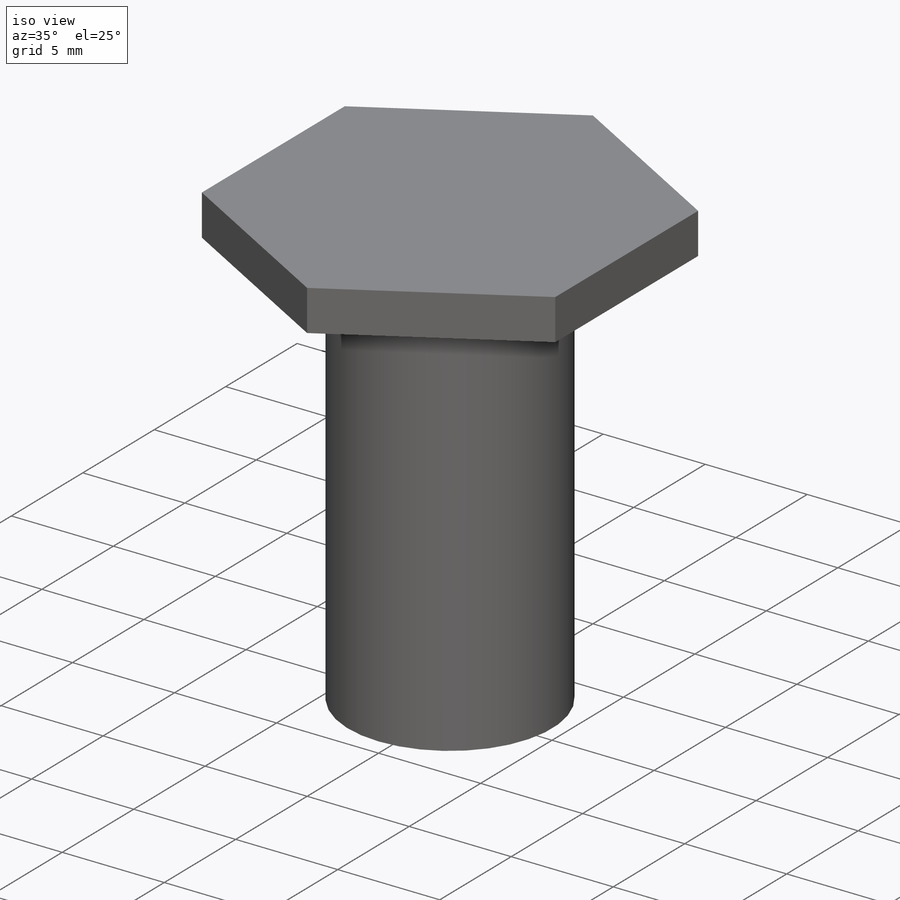
[diagram: iso view]
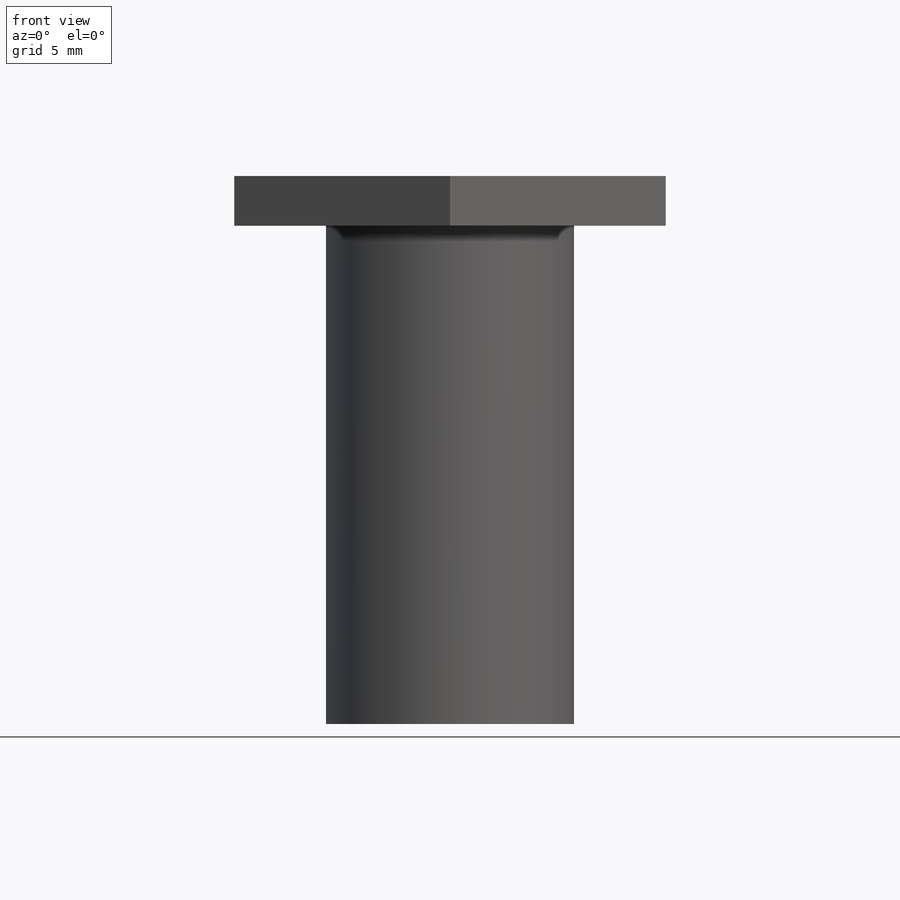
[diagram: front view]
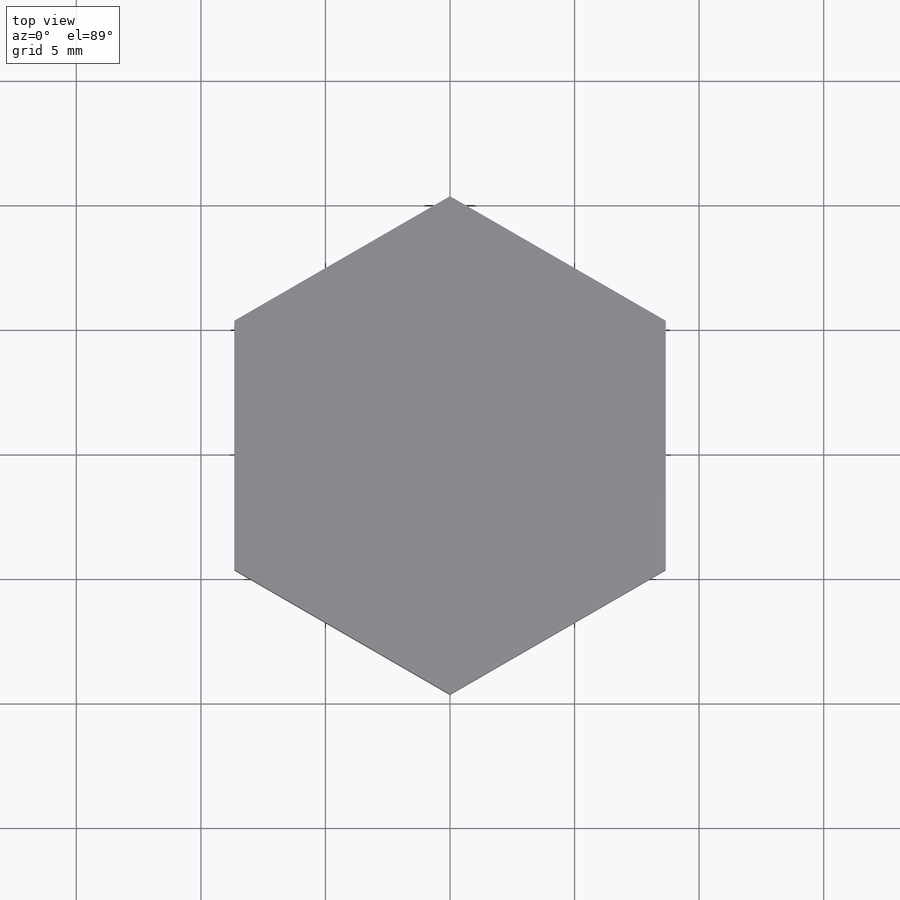
[diagram: top view]
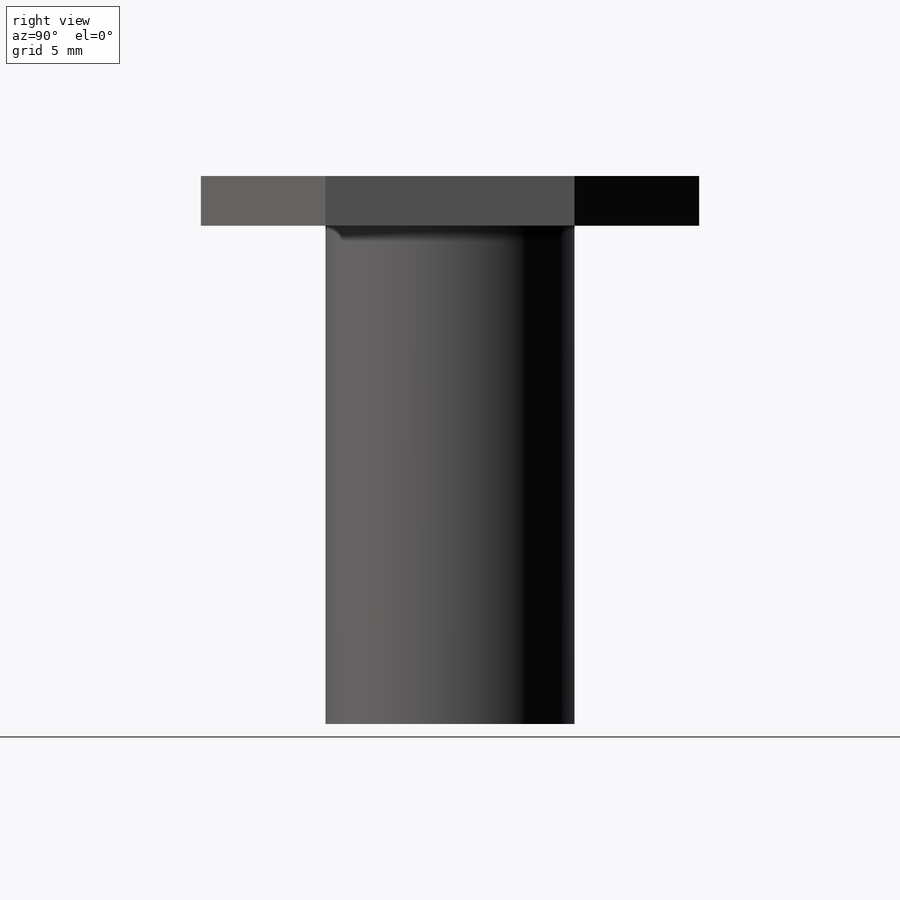
[diagram: right view]
SOLIDWORKS PART (.sldprt)
format: sldprt  version: not decoded by parser v0  size: 118,272 bytes
history: native  units: mm
features: sketch x3, extrude x2, plane x2, material x1, cut_extrude x1 (+12 scaffold rows collapsed)
feature tree (21):
  scaffold x12  (default folders/planes/origin — collapsed)
  material  "Material <not specified>"
  sketch  "Sketch1"  dims[D1=~30.944727mm]
  extrude  "Boss-Extrude1"  Depth=20mm
  plane  "Plane1"
  sketch  "Sketch2"  dims[D1=~8.641581mm]
  extrude  "Boss-Extrude2"  Depth=2mm
  plane  "Plane2"
  sketch  "Sketch3"  dims[D1=6.0]
  cut_extrude  "Cut-Extrude1"  Depth=2mm
decode coverage: 6 of 6 modeling features carry decoded parameters
note: ~ marks probable driven/reference dimensions
note: suppression state not decoded; provenance and decode notes live in map.json
